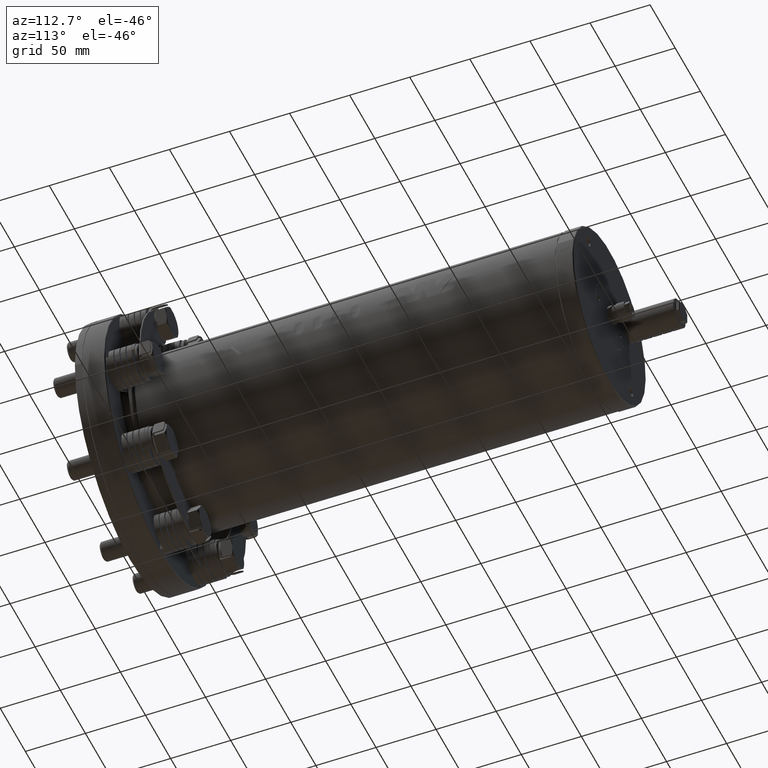
[diagram: clean part render]
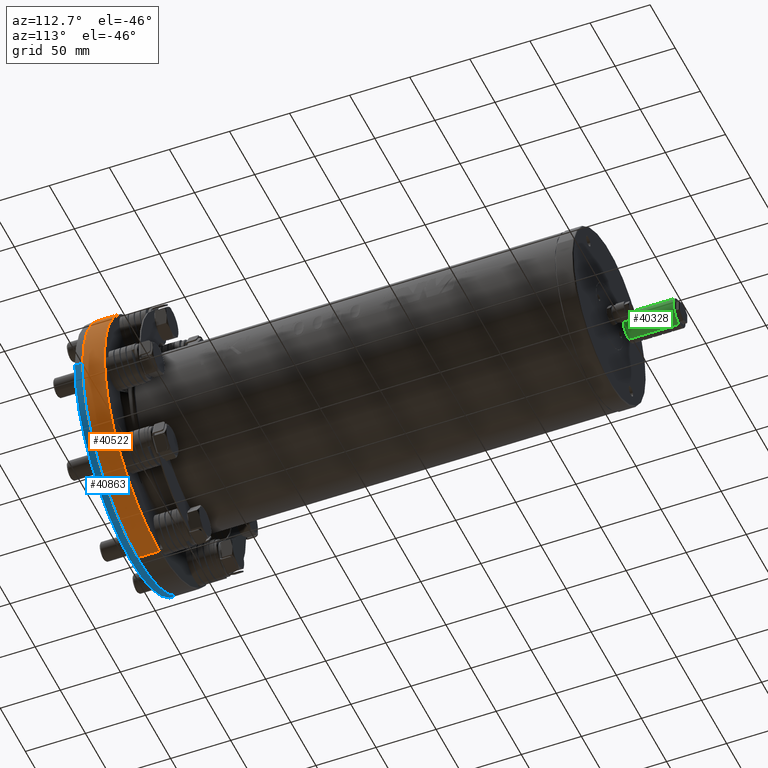
[diagram: same view with three faces highlighted in distinct colors, each labeled with its STEP entity id]
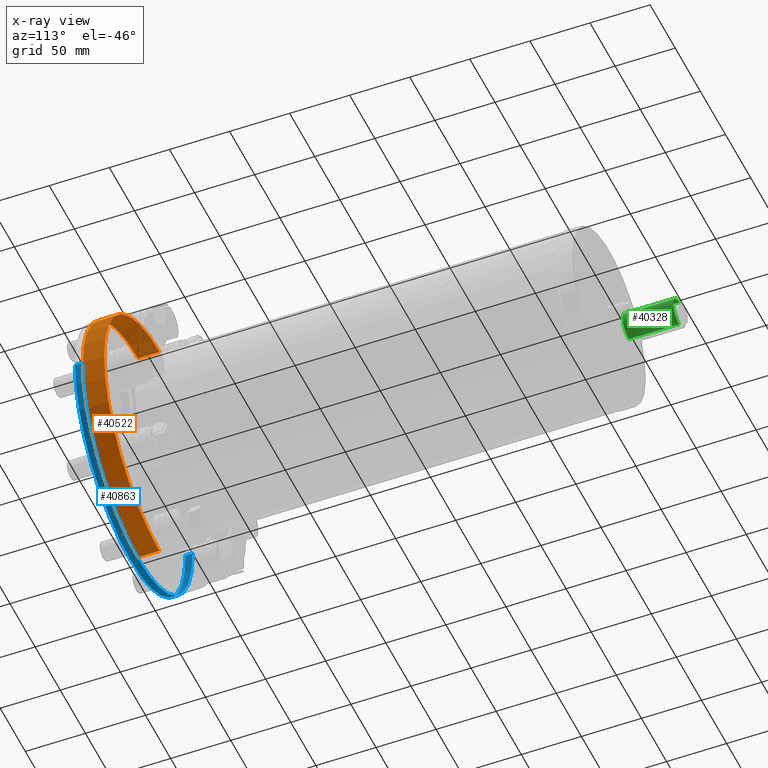
[diagram: x-ray of the same camera — body ghosted, the three highlighted faces saturated]
A machine part, auxiliary view with three faces highlighted in distinct colors.
The next image is the same camera in x-ray (body ghosted, the three faces saturated) — at least one of them is partly hidden behind the body in this view.
Their STEP definitions:

[orange] entity #40522 — the highlighted cylindrical surface (partial cylindrical patch) has radius 110 mm, axis along (0, -1, 0).
#80 = CARTESIAN_POINT ( 'NONE',  ( 1.347111479062088500E-014, 24.50000000000000000, 110.0000000000000000 ) ) ;
#89 = CARTESIAN_POINT ( 'NONE',  ( 1.347111479062088500E-014, 6.499999999999920100, 110.0000000000000000 ) ) ;
#2532 = VERTEX_POINT ( 'NONE', #80 ) ;
#2551 = VERTEX_POINT ( 'NONE', #89 ) ;
#5987 = FACE_OUTER_BOUND ( 'NONE', #63172, .T. ) ;
#5989 = CYLINDRICAL_SURFACE ( 'NONE', #70606, 110.0000000000000000 ) ;
#6733 = AXIS2_PLACEMENT_3D ( 'NONE', #29656, #29657, #29658 ) ;
#6736 = AXIS2_PLACEMENT_3D ( 'NONE', #29671, #29673, #29674 ) ;
#8833 = ORIENTED_EDGE ( 'NONE', *, *, #59271, .T. ) ;
#8834 = ORIENTED_EDGE ( 'NONE', *, *, #59702, .T. ) ;
#8835 = ORIENTED_EDGE ( 'NONE', *, *, #59276, .T. ) ;
#8840 = ORIENTED_EDGE ( 'NONE', *, *, #59711, .F. ) ;
#11900 = DIRECTION ( 'NONE',  ( 0.0000000000000000000, 0.0000000000000000000, -1.000000000000000000 ) ) ;
#11901 = DIRECTION ( 'NONE',  ( 0.0000000000000000000, -1.000000000000000000, 0.0000000000000000000 ) ) ;
#11902 = CARTESIAN_POINT ( 'NONE',  ( 0.0000000000000000000, 1.216494845360816000, 0.0000000000000000000 ) ) ;
#29023 = CARTESIAN_POINT ( 'NONE',  ( 1.347111479062088500E-014, 1.216494845360816000, 110.0000000000000000 ) ) ;
#29024 = DIRECTION ( 'NONE',  ( 0.0000000000000000000, -1.000000000000000000, 0.0000000000000000000 ) ) ;
#29054 = CARTESIAN_POINT ( 'NONE',  ( 0.0000000000000000000, 1.216494845360816000, -110.0000000000000000 ) ) ;
#29055 = DIRECTION ( 'NONE',  ( 0.0000000000000000000, -1.000000000000000000, 0.0000000000000000000 ) ) ;
#29656 = CARTESIAN_POINT ( 'NONE',  ( 0.0000000000000000000, 24.50000000000000000, 0.0000000000000000000 ) ) ;
#29657 = DIRECTION ( 'NONE',  ( -0.0000000000000000000, -1.000000000000000000, -0.0000000000000000000 ) ) ;
#29658 = DIRECTION ( 'NONE',  ( 0.0000000000000000000, 0.0000000000000000000, 1.000000000000000000 ) ) ;
#29671 = CARTESIAN_POINT ( 'NONE',  ( 0.0000000000000000000, 6.499999999999920100, 0.0000000000000000000 ) ) ;
#29673 = DIRECTION ( 'NONE',  ( -0.0000000000000000000, 1.000000000000000000, -0.0000000000000000000 ) ) ;
#29674 = DIRECTION ( 'NONE',  ( 0.0000000000000000000, 0.0000000000000000000, -1.000000000000000000 ) ) ;
#40522 = ADVANCED_FACE ( 'NONE', ( #5987 ), #5989, .T. ) ;
#49897 = VERTEX_POINT ( 'NONE', #71673 ) ;
#50037 = VERTEX_POINT ( 'NONE', #71949 ) ;
#59271 = EDGE_CURVE ( 'NONE', #49897, #2532, #74954, .T. ) ;
#59276 = EDGE_CURVE ( 'NONE', #2551, #50037, #74961, .T. ) ;
#59702 = EDGE_CURVE ( 'NONE', #2532, #2551, #62297, .T. ) ;
#59711 = EDGE_CURVE ( 'NONE', #49897, #50037, #62307, .T. ) ;
#62297 = LINE ( 'NONE', #29023, #62302 ) ;
#62302 = VECTOR ( 'NONE', #29024, 1000.000000000000000 ) ;
#62307 = LINE ( 'NONE', #29054, #62313 ) ;
#62313 = VECTOR ( 'NONE', #29055, 1000.000000000000000 ) ;
#63172 = EDGE_LOOP ( 'NONE', ( #8833, #8834, #8835, #8840 ) ) ;
#70606 = AXIS2_PLACEMENT_3D ( 'NONE', #11902, #11901, #11900 ) ;
#71673 = CARTESIAN_POINT ( 'NONE',  ( 0.0000000000000000000, 24.50000000000000000, -110.0000000000000000 ) ) ;
#71949 = CARTESIAN_POINT ( 'NONE',  ( 0.0000000000000000000, 6.499999999999920100, -110.0000000000000000 ) ) ;
#74954 = CIRCLE ( 'NONE', #6733, 110.0000000000000000 ) ;
#74961 = CIRCLE ( 'NONE', #6736, 110.0000000000000000 ) ;

[blue] entity #40863 — the highlighted cylindrical surface (partial cylindrical patch) has radius 110 mm, axis along (0, 1, 0).
#519 = CARTESIAN_POINT ( 'NONE',  ( 0.0000000000000000000, -1.734723475976804900E-015, 0.0000000000000000000 ) ) ;
#522 = DIRECTION ( 'NONE',  ( 0.0000000000000000000, -1.000000000000000000, 0.0000000000000000000 ) ) ;
#523 = DIRECTION ( 'NONE',  ( 1.000000000000000000, 0.0000000000000000000, 0.0000000000000000000 ) ) ;
#12886 = CARTESIAN_POINT ( 'NONE',  ( 110.0000000000000000, -1.734723475976804900E-015, 1.347111479062088500E-014 ) ) ;
#12888 = DIRECTION ( 'NONE',  ( 0.0000000000000000000, 1.000000000000000000, 0.0000000000000000000 ) ) ;
#12889 = DIRECTION ( 'NONE',  ( 0.0000000000000000000, 1.000000000000000000, 0.0000000000000000000 ) ) ;
#12891 = CARTESIAN_POINT ( 'NONE',  ( -110.0000000000000000, -1.734723475976804900E-015, 0.0000000000000000000 ) ) ;
#15817 = ORIENTED_EDGE ( 'NONE', *, *, #19389, .F. ) ;
#15818 = ORIENTED_EDGE ( 'NONE', *, *, #18396, .F. ) ;
#15819 = ORIENTED_EDGE ( 'NONE', *, *, #19390, .T. ) ;
#15820 = ORIENTED_EDGE ( 'NONE', *, *, #18942, .T. ) ;
#17004 = VECTOR ( 'NONE', #12889, 1000.000000000000000 ) ;
#17006 = LINE ( 'NONE', #12886, #17004 ) ;
#17019 = LINE ( 'NONE', #12891, #17021 ) ;
#17021 = VECTOR ( 'NONE', #12888, 1000.000000000000000 ) ;
#18396 = EDGE_CURVE ( 'NONE', #51358, #50955, #69395, .T. ) ;
#18942 = EDGE_CURVE ( 'NONE', #51166, #50911, #70380, .T. ) ;
#19389 = EDGE_CURVE ( 'NONE', #50955, #50911, #17006, .T. ) ;
#19390 = EDGE_CURVE ( 'NONE', #51358, #51166, #17019, .T. ) ;
#34470 = CARTESIAN_POINT ( 'NONE',  ( 0.0000000000000000000, 6.000000000000000000, 0.0000000000000000000 ) ) ;
#34472 = DIRECTION ( 'NONE',  ( 0.0000000000000000000, -1.000000000000000000, 0.0000000000000000000 ) ) ;
#34474 = DIRECTION ( 'NONE',  ( 1.000000000000000000, 0.0000000000000000000, 0.0000000000000000000 ) ) ;
#36302 = CYLINDRICAL_SURFACE ( 'NONE', #70945, 110.0000000000000000 ) ;
#36306 = FACE_OUTER_BOUND ( 'NONE', #62982, .T. ) ;
#40863 = ADVANCED_FACE ( 'NONE', ( #36306 ), #36302, .T. ) ;
#50911 = VERTEX_POINT ( 'NONE', #73369 ) ;
#50955 = VERTEX_POINT ( 'NONE', #73456 ) ;
#51166 = VERTEX_POINT ( 'NONE', #73818 ) ;
#51358 = VERTEX_POINT ( 'NONE', #74010 ) ;
#53688 = AXIS2_PLACEMENT_3D ( 'NONE', #519, #522, #523 ) ;
#55185 = DIRECTION ( 'NONE',  ( -1.000000000000000000, 0.0000000000000000000, 0.0000000000000000000 ) ) ;
#55192 = DIRECTION ( 'NONE',  ( 0.0000000000000000000, 1.000000000000000000, 0.0000000000000000000 ) ) ;
#55203 = CARTESIAN_POINT ( 'NONE',  ( 0.0000000000000000000, -1.734723475976804900E-015, 0.0000000000000000000 ) ) ;
#61749 = AXIS2_PLACEMENT_3D ( 'NONE', #34470, #34472, #34474 ) ;
#62982 = EDGE_LOOP ( 'NONE', ( #15817, #15818, #15819, #15820 ) ) ;
#69395 = CIRCLE ( 'NONE', #53688, 110.0000000000000000 ) ;
#70380 = CIRCLE ( 'NONE', #61749, 110.0000000000000000 ) ;
#70945 = AXIS2_PLACEMENT_3D ( 'NONE', #55203, #55192, #55185 ) ;
#73369 = CARTESIAN_POINT ( 'NONE',  ( 110.0000000000000000, 6.000000000000000000, 1.347111479062088500E-014 ) ) ;
#73456 = CARTESIAN_POINT ( 'NONE',  ( 110.0000000000000000, -1.734723475976804900E-015, 1.347111479062088500E-014 ) ) ;
#73818 = CARTESIAN_POINT ( 'NONE',  ( -110.0000000000000000, 6.000000000000000000, 0.0000000000000000000 ) ) ;
#74010 = CARTESIAN_POINT ( 'NONE',  ( -110.0000000000000000, -1.734723475976804900E-015, 0.0000000000000000000 ) ) ;

[green] entity #40328 — the highlighted cylindrical surface (edge-blend (fillet) strip) has radius 12 mm, axis along (0, -1, -0).
#5068 = FACE_OUTER_BOUND ( 'NONE', #39830, .T. ) ;
#5074 = CYLINDRICAL_SURFACE ( 'NONE', #70234, 12.00000000000000000 ) ;
#6538 = AXIS2_PLACEMENT_3D ( 'NONE', #74138, #74144, #74146 ) ;
#6567 = AXIS2_PLACEMENT_3D ( 'NONE', #19814, #19816, #19817 ) ;
#8712 = ORIENTED_EDGE ( 'NONE', *, *, #55616, .F. ) ;
#8715 = ORIENTED_EDGE ( 'NONE', *, *, #55489, .F. ) ;
#8716 = ORIENTED_EDGE ( 'NONE', *, *, #55522, .T. ) ;
#8717 = ORIENTED_EDGE ( 'NONE', *, *, #55534, .T. ) ;
#8718 = ORIENTED_EDGE ( 'NONE', *, *, #55533, .T. ) ;
#8719 = ORIENTED_EDGE ( 'NONE', *, *, #55537, .F. ) ;
#8720 = ORIENTED_EDGE ( 'NONE', *, *, #55530, .T. ) ;
#8721 = ORIENTED_EDGE ( 'NONE', *, *, #55487, .T. ) ;
#8722 = ORIENTED_EDGE ( 'NONE', *, *, #55541, .T. ) ;
#8723 = ORIENTED_EDGE ( 'NONE', *, *, #55492, .F. ) ;
#8725 = ORIENTED_EDGE ( 'NONE', *, *, #55494, .T. ) ;
#8727 = ORIENTED_EDGE ( 'NONE', *, *, #55483, .T. ) ;
#9244 = ORIENTED_EDGE ( 'NONE', *, *, #55562, .F. ) ;
#9246 = ORIENTED_EDGE ( 'NONE', *, *, #55531, .F. ) ;
#9247 = ORIENTED_EDGE ( 'NONE', *, *, #55525, .F. ) ;
#9248 = ORIENTED_EDGE ( 'NONE', *, *, #56443, .F. ) ;
#9249 = ORIENTED_EDGE ( 'NONE', *, *, #55631, .F. ) ;
#9250 = ORIENTED_EDGE ( 'NONE', *, *, #55540, .F. ) ;
#9251 = ORIENTED_EDGE ( 'NONE', *, *, #55493, .T. ) ;
#9252 = ORIENTED_EDGE ( 'NONE', *, *, #55482, .F. ) ;
#19787 = CARTESIAN_POINT ( 'NONE',  ( -36.80607966083864800, 442.0000000000000000, 33.25000000000000000 ) ) ;
#19788 = DIRECTION ( 'NONE',  ( 5.592707588511459800E-018, -1.000000000000000000, -4.248083166670449500E-017 ) ) ;
#19794 = CARTESIAN_POINT ( 'NONE',  ( -36.80607966083864800, 442.0000000000000000, 9.250000000000001800 ) ) ;
#19795 = DIRECTION ( 'NONE',  ( 5.592707588511459800E-018, -1.000000000000000000, -4.248083166670449500E-017 ) ) ;
#19796 = CARTESIAN_POINT ( 'NONE',  ( -36.80607966083864800, 442.0000000000000000, 33.25000000000000000 ) ) ;
#19807 = CARTESIAN_POINT ( 'NONE',  ( -36.80607966083864800, 442.0000000000000000, 33.25000000000000000 ) ) ;
#19808 = DIRECTION ( 'NONE',  ( 5.592707588511459800E-018, -1.000000000000000000, -4.248083166670449500E-017 ) ) ;
#19809 = CARTESIAN_POINT ( 'NONE',  ( -36.80607966083864800, 442.0000000000000000, 9.250000000000001800 ) ) ;
#19810 = DIRECTION ( 'NONE',  ( 5.592707588511459800E-018, -1.000000000000000000, -4.248083166670449500E-017 ) ) ;
#19814 = CARTESIAN_POINT ( 'NONE',  ( -36.80607966083864800, 441.5000000000000000, 21.25000000000000000 ) ) ;
#19815 = DIRECTION ( 'NONE',  ( 5.592707588511459800E-018, -1.000000000000000000, -4.248083166670449500E-017 ) ) ;
#19816 = DIRECTION ( 'NONE',  ( 5.592707588511459800E-018, -1.000000000000000000, -4.248083166670449500E-017 ) ) ;
#19817 = DIRECTION ( 'NONE',  ( 0.0000000000000000000, 0.0000000000000000000, -1.000000000000000000 ) ) ;
#19818 = CARTESIAN_POINT ( 'NONE',  ( -36.80607966083864800, 442.0000000000000000, 33.25000000000000000 ) ) ;
#19825 = CARTESIAN_POINT ( 'NONE',  ( -36.80607966083864800, 442.0000000000000000, 33.25000000000000000 ) ) ;
#19826 = DIRECTION ( 'NONE',  ( -5.592707588511459800E-018, 1.000000000000000000, 4.248083166670449500E-017 ) ) ;
#19831 = CARTESIAN_POINT ( 'NONE',  ( -36.80607966083864800, 442.0000000000000000, 9.250000000000001800 ) ) ;
#19832 = DIRECTION ( 'NONE',  ( 5.592707588511459800E-018, -1.000000000000000000, -4.248083166670449500E-017 ) ) ;
#19833 = DIRECTION ( 'NONE',  ( 5.592707588511459800E-018, -1.000000000000000000, -4.248083166670449500E-017 ) ) ;
#19880 = CARTESIAN_POINT ( 'NONE',  ( -36.80607966083864800, 442.0000000000000000, 9.250000000000000000 ) ) ;
#19886 = DIRECTION ( 'NONE',  ( 5.592707588511459800E-018, -1.000000000000000000, -4.248083166670449500E-017 ) ) ;
#20070 = CARTESIAN_POINT ( 'NONE',  ( -36.80607966083864800, 442.0000000000000000, 9.250000000000001800 ) ) ;
#20071 = DIRECTION ( 'NONE',  ( 5.592707588511459800E-018, -1.000000000000000000, -4.248083166670449500E-017 ) ) ;
#20088 = CARTESIAN_POINT ( 'NONE',  ( -36.80607966083864800, 442.0000000000000000, 9.250000000000000000 ) ) ;
#20091 = DIRECTION ( 'NONE',  ( 5.592707588511459800E-018, -1.000000000000000000, -4.248083166670449500E-017 ) ) ;
#39830 = EDGE_LOOP ( 'NONE', ( #8712, #8717, #8716, #8715, #8720, #8719, #8718, #8723, #8722, #8721, #8727, #8725, #9252, #9251, #9250, #9248, #9247, #9249, #9246, #9244 ) ) ;
#40328 = ADVANCED_FACE ( 'NONE', ( #5068 ), #5074, .T. ) ;
#49966 = VERTEX_POINT ( 'NONE', #71808 ) ;
#50853 = VERTEX_POINT ( 'NONE', #73262 ) ;
#50885 = VERTEX_POINT ( 'NONE', #73322 ) ;
#50886 = VERTEX_POINT ( 'NONE', #73324 ) ;
#50887 = VERTEX_POINT ( 'NONE', #73326 ) ;
#50890 = VERTEX_POINT ( 'NONE', #73332 ) ;
#50931 = VERTEX_POINT ( 'NONE', #73409 ) ;
#51072 = VERTEX_POINT ( 'NONE', #73636 ) ;
#51082 = VERTEX_POINT ( 'NONE', #73656 ) ;
#51085 = VERTEX_POINT ( 'NONE', #73662 ) ;
#51086 = VERTEX_POINT ( 'NONE', #73664 ) ;
#51089 = VERTEX_POINT ( 'NONE', #73669 ) ;
#51091 = VERTEX_POINT ( 'NONE', #73673 ) ;
#51094 = VERTEX_POINT ( 'NONE', #73679 ) ;
#51095 = VERTEX_POINT ( 'NONE', #73681 ) ;
#51096 = VERTEX_POINT ( 'NONE', #73683 ) ;
#51137 = VERTEX_POINT ( 'NONE', #73764 ) ;
#51140 = VERTEX_POINT ( 'NONE', #73770 ) ;
#51202 = VERTEX_POINT ( 'NONE', #73885 ) ;
#51203 = VERTEX_POINT ( 'NONE', #73887 ) ;
#55482 = EDGE_CURVE ( 'NONE', #51091, #50853, #74292, .T. ) ;
#55483 = EDGE_CURVE ( 'NONE', #51096, #51140, #74306, .T. ) ;
#55487 = EDGE_CURVE ( 'NONE', #51095, #51096, #74312, .T. ) ;
#55489 = EDGE_CURVE ( 'NONE', #49966, #51203, #74314, .T. ) ;
#55492 = EDGE_CURVE ( 'NONE', #51089, #51094, #74320, .T. ) ;
#55493 = EDGE_CURVE ( 'NONE', #51091, #51085, #74319, .T. ) ;
#55494 = EDGE_CURVE ( 'NONE', #51140, #50853, #74324, .T. ) ;
#55522 = EDGE_CURVE ( 'NONE', #50887, #51203, #74341, .T. ) ;
#55525 = EDGE_CURVE ( 'NONE', #50931, #51082, #74351, .T. ) ;
#55530 = EDGE_CURVE ( 'NONE', #49966, #50890, #74362, .T. ) ;
#55531 = EDGE_CURVE ( 'NONE', #50886, #51072, #74368, .T. ) ;
#55533 = EDGE_CURVE ( 'NONE', #51202, #51094, #74366, .T. ) ;
#55534 = EDGE_CURVE ( 'NONE', #51137, #50887, #74376, .T. ) ;
#55537 = EDGE_CURVE ( 'NONE', #51202, #50890, #74378, .T. ) ;
#55540 = EDGE_CURVE ( 'NONE', #51086, #51085, #74374, .T. ) ;
#55541 = EDGE_CURVE ( 'NONE', #51089, #51095, #74382, .T. ) ;
#55562 = EDGE_CURVE ( 'NONE', #50885, #50886, #74417, .T. ) ;
#55616 = EDGE_CURVE ( 'NONE', #51137, #50885, #74494, .T. ) ;
#55631 = EDGE_CURVE ( 'NONE', #51072, #50931, #74508, .T. ) ;
#56443 = EDGE_CURVE ( 'NONE', #51082, #51086, #74802, .T. ) ;
#63842 = CARTESIAN_POINT ( 'NONE',  ( -36.80607966083864800, 442.0000000000000000, 9.250000000000000000 ) ) ;
#63843 = DIRECTION ( 'NONE',  ( 5.592707588511459800E-018, -1.000000000000000000, -4.248083166670449500E-017 ) ) ;
#68676 = DIRECTION ( 'NONE',  ( 0.0000000000000000000, 0.0000000000000000000, 1.000000000000000000 ) ) ;
#68677 = DIRECTION ( 'NONE',  ( 5.592707588511459800E-018, -1.000000000000000000, -4.248083166670449500E-017 ) ) ;
#68678 = CARTESIAN_POINT ( 'NONE',  ( -36.80607966083864800, 442.0000000000000000, 21.25000000000000000 ) ) ;
#70234 = AXIS2_PLACEMENT_3D ( 'NONE', #68678, #68677, #68676 ) ;
#71808 = CARTESIAN_POINT ( 'NONE',  ( -36.80607966083864800, 431.0000000000000000, 33.25000000000000000 ) ) ;
#73262 = CARTESIAN_POINT ( 'NONE',  ( -36.80607966083864800, 399.5000000000000000, 9.250000000000001800 ) ) ;
#73322 = CARTESIAN_POINT ( 'NONE',  ( -36.80607966083864800, 433.0000000000000000, 9.250000000000000000 ) ) ;
#73324 = CARTESIAN_POINT ( 'NONE',  ( -36.80607966083864800, 431.0000000000000000, 9.250000000000000000 ) ) ;
#73326 = CARTESIAN_POINT ( 'NONE',  ( -36.80607966083864800, 441.5000000000000000, 33.25000000000000000 ) ) ;
#73332 = CARTESIAN_POINT ( 'NONE',  ( -36.80607966083864800, 425.0000000000000000, 33.25000000000000000 ) ) ;
#73409 = CARTESIAN_POINT ( 'NONE',  ( -36.80607966083864800, 423.0000000000000000, 9.250000000000000000 ) ) ;
#73636 = CARTESIAN_POINT ( 'NONE',  ( -36.80607966083864800, 425.0000000000000000, 9.250000000000000000 ) ) ;
#73656 = CARTESIAN_POINT ( 'NONE',  ( -36.80607966083864800, 417.0000000000000000, 9.250000000000000000 ) ) ;
#73662 = CARTESIAN_POINT ( 'NONE',  ( -36.80607966083864800, 409.0000000000000000, 9.250000000000000000 ) ) ;
#73664 = CARTESIAN_POINT ( 'NONE',  ( -36.80607966083864800, 415.0000000000000000, 9.250000000000000000 ) ) ;
#73669 = CARTESIAN_POINT ( 'NONE',  ( -36.80607966083864800, 415.0000000000000000, 33.25000000000000000 ) ) ;
#73673 = CARTESIAN_POINT ( 'NONE',  ( -36.80607966083864800, 407.0000000000000000, 9.250000000000000000 ) ) ;
#73679 = CARTESIAN_POINT ( 'NONE',  ( -36.80607966083864800, 417.0000000000000000, 33.25000000000000000 ) ) ;
#73681 = CARTESIAN_POINT ( 'NONE',  ( -36.80607966083864800, 409.0000000000000000, 33.25000000000000000 ) ) ;
#73683 = CARTESIAN_POINT ( 'NONE',  ( -36.80607966083864800, 407.0000000000000000, 33.25000000000000000 ) ) ;
#73764 = CARTESIAN_POINT ( 'NONE',  ( -36.80607966083864800, 441.5000000000000000, 9.250000000000001800 ) ) ;
#73770 = CARTESIAN_POINT ( 'NONE',  ( -36.80607966083864800, 399.5000000000000000, 33.25000000000000000 ) ) ;
#73885 = CARTESIAN_POINT ( 'NONE',  ( -36.80607966083864800, 423.0000000000000000, 33.25000000000000000 ) ) ;
#73887 = CARTESIAN_POINT ( 'NONE',  ( -36.80607966083864800, 433.0000000000000000, 33.25000000000000000 ) ) ;
#74072 = CARTESIAN_POINT ( 'NONE',  ( -36.80607966083864800, 442.0000000000000000, 9.250000000000001800 ) ) ;
#74074 = DIRECTION ( 'NONE',  ( 5.592707588511459800E-018, -1.000000000000000000, -4.248083166670449500E-017 ) ) ;
#74076 = CARTESIAN_POINT ( 'NONE',  ( -36.80607966083864800, 442.0000000000000000, 33.25000000000000000 ) ) ;
#74078 = CARTESIAN_POINT ( 'NONE',  ( -36.80607966083864800, 442.0000000000000000, 33.25000000000000000 ) ) ;
#74080 = CARTESIAN_POINT ( 'NONE',  ( -36.80607966083864800, 442.0000000000000000, 33.25000000000000000 ) ) ;
#74082 = DIRECTION ( 'NONE',  ( 5.592707588511459800E-018, -1.000000000000000000, -4.248083166670449500E-017 ) ) ;
#74108 = DIRECTION ( 'NONE',  ( 5.592707588511459800E-018, -1.000000000000000000, -4.248083166670449500E-017 ) ) ;
#74119 = DIRECTION ( 'NONE',  ( -5.592707588511459800E-018, 1.000000000000000000, 4.248083166670449500E-017 ) ) ;
#74122 = CARTESIAN_POINT ( 'NONE',  ( -36.80607966083864800, 442.0000000000000000, 33.25000000000000000 ) ) ;
#74133 = CARTESIAN_POINT ( 'NONE',  ( -36.80607966083864800, 442.0000000000000000, 9.250000000000000000 ) ) ;
#74136 = DIRECTION ( 'NONE',  ( -5.592707588511459800E-018, 1.000000000000000000, 4.248083166670449500E-017 ) ) ;
#74138 = CARTESIAN_POINT ( 'NONE',  ( -36.80607966083864800, 399.5000000000000000, 21.25000000000000000 ) ) ;
#74141 = DIRECTION ( 'NONE',  ( -5.592707588511459800E-018, 1.000000000000000000, 4.248083166670449500E-017 ) ) ;
#74144 = DIRECTION ( 'NONE',  ( -5.592707588511459800E-018, 1.000000000000000000, 4.248083166670449500E-017 ) ) ;
#74146 = DIRECTION ( 'NONE',  ( 0.0000000000000000000, 0.0000000000000000000, -1.000000000000000000 ) ) ;
#74292 = LINE ( 'NONE', #74072, #74304 ) ;
#74300 = VECTOR ( 'NONE', #74082, 1000.000000000000000 ) ;
#74304 = VECTOR ( 'NONE', #74074, 1000.000000000000000 ) ;
#74306 = LINE ( 'NONE', #74076, #74300 ) ;
#74307 = VECTOR ( 'NONE', #74108, 1000.000000000000000 ) ;
#74308 = VECTOR ( 'NONE', #74119, 1000.000000000000000 ) ;
#74312 = LINE ( 'NONE', #74080, #74307 ) ;
#74314 = LINE ( 'NONE', #74078, #74308 ) ;
#74317 = VECTOR ( 'NONE', #74136, 1000.000000000000000 ) ;
#74319 = LINE ( 'NONE', #74133, #74322 ) ;
#74320 = LINE ( 'NONE', #74122, #74317 ) ;
#74322 = VECTOR ( 'NONE', #74141, 1000.000000000000000 ) ;
#74324 = CIRCLE ( 'NONE', #6538, 12.00000000000000000 ) ;
#74341 = LINE ( 'NONE', #19787, #74353 ) ;
#74351 = LINE ( 'NONE', #19794, #74357 ) ;
#74353 = VECTOR ( 'NONE', #19788, 1000.000000000000000 ) ;
#74355 = VECTOR ( 'NONE', #19808, 1000.000000000000000 ) ;
#74357 = VECTOR ( 'NONE', #19795, 1000.000000000000000 ) ;
#74362 = LINE ( 'NONE', #19807, #74355 ) ;
#74363 = VECTOR ( 'NONE', #19826, 1000.000000000000000 ) ;
#74366 = LINE ( 'NONE', #19796, #74372 ) ;
#74368 = LINE ( 'NONE', #19809, #74369 ) ;
#74369 = VECTOR ( 'NONE', #19810, 1000.000000000000000 ) ;
#74372 = VECTOR ( 'NONE', #19815, 1000.000000000000000 ) ;
#74373 = VECTOR ( 'NONE', #19832, 1000.000000000000000 ) ;
#74374 = LINE ( 'NONE', #19831, #74373 ) ;
#74376 = CIRCLE ( 'NONE', #6567, 12.00000000000000000 ) ;
#74378 = LINE ( 'NONE', #19818, #74363 ) ;
#74382 = LINE ( 'NONE', #19825, #74384 ) ;
#74384 = VECTOR ( 'NONE', #19833, 1000.000000000000000 ) ;
#74415 = VECTOR ( 'NONE', #19886, 1000.000000000000000 ) ;
#74417 = LINE ( 'NONE', #19880, #74415 ) ;
#74494 = LINE ( 'NONE', #20070, #74502 ) ;
#74502 = VECTOR ( 'NONE', #20071, 1000.000000000000000 ) ;
#74508 = LINE ( 'NONE', #20088, #74514 ) ;
#74514 = VECTOR ( 'NONE', #20091, 1000.000000000000000 ) ;
#74802 = LINE ( 'NONE', #63842, #74809 ) ;
#74809 = VECTOR ( 'NONE', #63843, 1000.000000000000000 ) ;